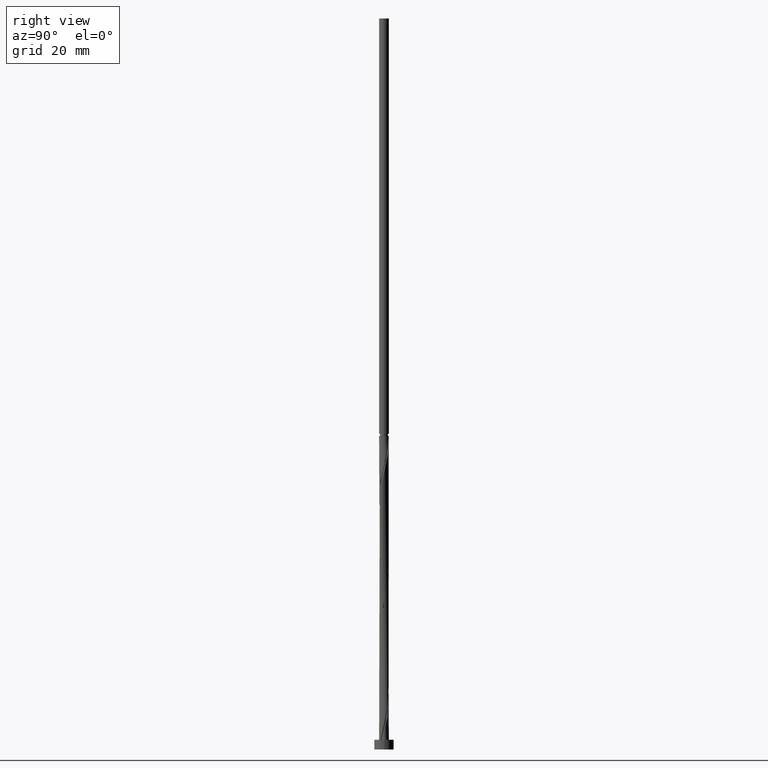
[diagram: clean part render]
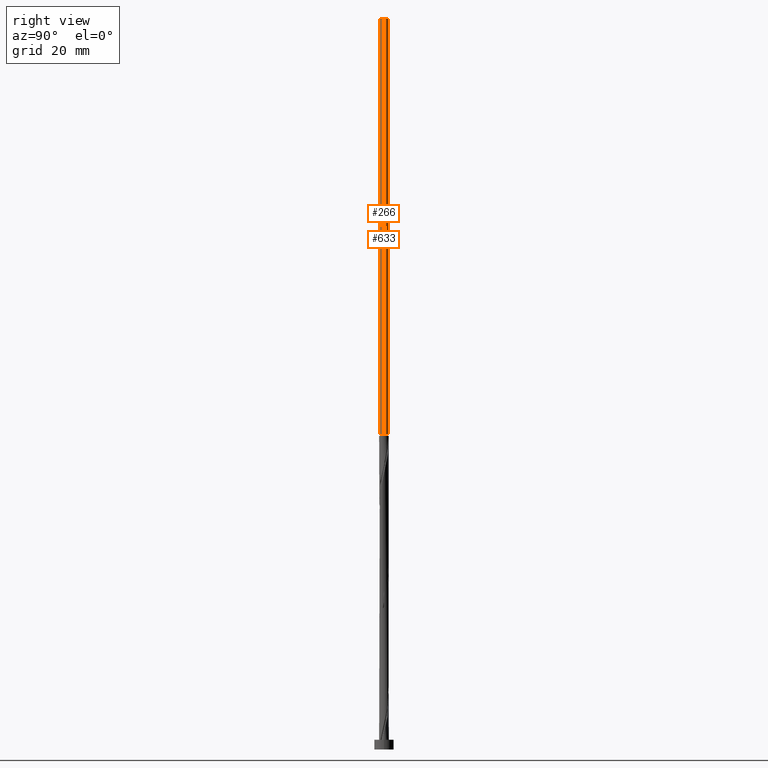
[diagram: same view with one multi-face feature highlighted, each face labeled with its STEP entity id]
A machine part, right view. The highlighted faces form ONE feature: a constant-radius fillet chain: 2 tangent blend faces with common blend radius 1 mm. The faces share edges in the B-rep.
Their STEP definitions:
[1] entity #266 (Cylinder):
#3 = DIRECTION ( 'NONE',  ( -1.000000000000000000, 0.000000000000000000, 0.000000000000000000 ) ) ;
#89 = AXIS2_PLACEMENT_3D ( 'NONE', #789, #282, #3 ) ;
#105 = DIRECTION ( 'NONE',  ( 1.000000000000000000, 0.000000000000000000, 0.000000000000000000 ) ) ;
#124 = CIRCLE ( 'NONE', #1044, 1.000000000000000000 ) ;
#180 = VERTEX_POINT ( 'NONE', #555 ) ;
#206 = EDGE_CURVE ( 'NONE', #1597, #735, #124, .T. ) ;
#266 = ADVANCED_FACE ( 'NONE', ( #1559 ), #396, .T. ) ;
#282 = DIRECTION ( 'NONE',  ( -0.000000000000000000, -0.000000000000000000, -1.000000000000000000 ) ) ;
#297 = CIRCLE ( 'NONE', #89, 1.000000000000004219 ) ;
#396 = CYLINDRICAL_SURFACE ( 'NONE', #1719, 1.000000000000000000 ) ;
#445 = VERTEX_POINT ( 'NONE', #779 ) ;
#555 = CARTESIAN_POINT ( 'NONE',  ( 1.000000000000004219, 1.224646799147358138E-16, 64.75626585807479785 ) ) ;
#596 = EDGE_CURVE ( 'NONE', #180, #445, #297, .T. ) ;
#607 = ORIENTED_EDGE ( 'NONE', *, *, #729, .T. ) ;
#610 = CARTESIAN_POINT ( 'NONE',  ( -1.000000000000000000, 0.000000000000000000, 150.0000000000000000 ) ) ;
#729 = EDGE_CURVE ( 'NONE', #1597, #445, #1298, .T. ) ;
#735 = VERTEX_POINT ( 'NONE', #1397 ) ;
#779 = CARTESIAN_POINT ( 'NONE',  ( -1.000000000000004219, 0.000000000000000000, 64.75626585807479785 ) ) ;
#789 = CARTESIAN_POINT ( 'NONE',  ( 0.000000000000000000, 0.000000000000000000, 64.75626585807479785 ) ) ;
#866 = ORIENTED_EDGE ( 'NONE', *, *, #596, .F. ) ;
#962 = DIRECTION ( 'NONE',  ( -0.000000000000000000, -0.000000000000000000, -1.000000000000000000 ) ) ;
#978 = DIRECTION ( 'NONE',  ( 0.000000000000000000, 0.000000000000000000, 1.000000000000000000 ) ) ;
#985 = CARTESIAN_POINT ( 'NONE',  ( -1.000000000000000000, 0.000000000000000000, 150.0000000000000000 ) ) ;
#1006 = EDGE_CURVE ( 'NONE', #735, #180, #1575, .T. ) ;
#1044 = AXIS2_PLACEMENT_3D ( 'NONE', #1848, #978, #105 ) ;
#1120 = ORIENTED_EDGE ( 'NONE', *, *, #206, .F. ) ;
#1127 = DIRECTION ( 'NONE',  ( -0.000000000000000000, -0.000000000000000000, -1.000000000000000000 ) ) ;
#1140 = DIRECTION ( 'NONE',  ( -0.000000000000000000, -0.000000000000000000, -1.000000000000000000 ) ) ;
#1167 = EDGE_LOOP ( 'NONE', ( #1447, #1120, #607, #866 ) ) ;
#1197 = VECTOR ( 'NONE', #1140, 1000.000000000000000 ) ;
#1298 = LINE ( 'NONE', #985, #1590 ) ;
#1397 = CARTESIAN_POINT ( 'NONE',  ( 1.000000000000000000, 1.224646799147353207E-16, 150.0000000000000000 ) ) ;
#1447 = ORIENTED_EDGE ( 'NONE', *, *, #1006, .F. ) ;
#1541 = DIRECTION ( 'NONE',  ( -1.000000000000000000, 0.000000000000000000, 0.000000000000000000 ) ) ;
#1548 = CARTESIAN_POINT ( 'NONE',  ( 1.000000000000000000, 1.224646799147353207E-16, 150.0000000000000000 ) ) ;
#1559 = FACE_OUTER_BOUND ( 'NONE', #1167, .T. ) ;
#1571 = CARTESIAN_POINT ( 'NONE',  ( 0.000000000000000000, 0.000000000000000000, 150.0000000000000000 ) ) ;
#1575 = LINE ( 'NONE', #1548, #1197 ) ;
#1590 = VECTOR ( 'NONE', #1127, 1000.000000000000000 ) ;
#1597 = VERTEX_POINT ( 'NONE', #610 ) ;
#1719 = AXIS2_PLACEMENT_3D ( 'NONE', #1571, #962, #1541 ) ;
#1848 = CARTESIAN_POINT ( 'NONE',  ( 0.000000000000000000, 0.000000000000000000, 150.0000000000000000 ) ) ;
[2] entity #633 (Cylinder):
#135 = DIRECTION ( 'NONE',  ( 0.000000000000000000, 0.000000000000000000, 1.000000000000000000 ) ) ;
#180 = VERTEX_POINT ( 'NONE', #555 ) ;
#267 = CARTESIAN_POINT ( 'NONE',  ( 0.000000000000000000, 0.000000000000000000, 150.0000000000000000 ) ) ;
#434 = DIRECTION ( 'NONE',  ( -0.000000000000000000, -0.000000000000000000, -1.000000000000000000 ) ) ;
#445 = VERTEX_POINT ( 'NONE', #779 ) ;
#555 = CARTESIAN_POINT ( 'NONE',  ( 1.000000000000004219, 1.224646799147358138E-16, 64.75626585807479785 ) ) ;
#569 = CARTESIAN_POINT ( 'NONE',  ( 0.000000000000000000, 0.000000000000000000, 150.0000000000000000 ) ) ;
#610 = CARTESIAN_POINT ( 'NONE',  ( -1.000000000000000000, 0.000000000000000000, 150.0000000000000000 ) ) ;
#633 = ADVANCED_FACE ( 'NONE', ( #713 ), #1557, .T. ) ;
#636 = ORIENTED_EDGE ( 'NONE', *, *, #1347, .F. ) ;
#680 = EDGE_CURVE ( 'NONE', #735, #1597, #1435, .T. ) ;
#712 = AXIS2_PLACEMENT_3D ( 'NONE', #1151, #730, #749 ) ;
#713 = FACE_OUTER_BOUND ( 'NONE', #899, .T. ) ;
#729 = EDGE_CURVE ( 'NONE', #1597, #445, #1298, .T. ) ;
#730 = DIRECTION ( 'NONE',  ( -0.000000000000000000, -0.000000000000000000, -1.000000000000000000 ) ) ;
#735 = VERTEX_POINT ( 'NONE', #1397 ) ;
#749 = DIRECTION ( 'NONE',  ( -1.000000000000000000, 0.000000000000000000, 0.000000000000000000 ) ) ;
#779 = CARTESIAN_POINT ( 'NONE',  ( -1.000000000000004219, 0.000000000000000000, 64.75626585807479785 ) ) ;
#833 = AXIS2_PLACEMENT_3D ( 'NONE', #267, #135, #1831 ) ;
#899 = EDGE_LOOP ( 'NONE', ( #1521, #1190, #636, #1664 ) ) ;
#985 = CARTESIAN_POINT ( 'NONE',  ( -1.000000000000000000, 0.000000000000000000, 150.0000000000000000 ) ) ;
#1006 = EDGE_CURVE ( 'NONE', #735, #180, #1575, .T. ) ;
#1127 = DIRECTION ( 'NONE',  ( -0.000000000000000000, -0.000000000000000000, -1.000000000000000000 ) ) ;
#1140 = DIRECTION ( 'NONE',  ( -0.000000000000000000, -0.000000000000000000, -1.000000000000000000 ) ) ;
#1151 = CARTESIAN_POINT ( 'NONE',  ( 0.000000000000000000, 0.000000000000000000, 64.75626585807479785 ) ) ;
#1190 = ORIENTED_EDGE ( 'NONE', *, *, #1006, .T. ) ;
#1197 = VECTOR ( 'NONE', #1140, 1000.000000000000000 ) ;
#1270 = DIRECTION ( 'NONE',  ( -1.000000000000000000, 0.000000000000000000, 0.000000000000000000 ) ) ;
#1296 = CIRCLE ( 'NONE', #712, 1.000000000000004219 ) ;
#1298 = LINE ( 'NONE', #985, #1590 ) ;
#1347 = EDGE_CURVE ( 'NONE', #445, #180, #1296, .T. ) ;
#1349 = AXIS2_PLACEMENT_3D ( 'NONE', #569, #434, #1270 ) ;
#1397 = CARTESIAN_POINT ( 'NONE',  ( 1.000000000000000000, 1.224646799147353207E-16, 150.0000000000000000 ) ) ;
#1435 = CIRCLE ( 'NONE', #833, 1.000000000000000000 ) ;
#1521 = ORIENTED_EDGE ( 'NONE', *, *, #680, .F. ) ;
#1548 = CARTESIAN_POINT ( 'NONE',  ( 1.000000000000000000, 1.224646799147353207E-16, 150.0000000000000000 ) ) ;
#1557 = CYLINDRICAL_SURFACE ( 'NONE', #1349, 1.000000000000000000 ) ;
#1575 = LINE ( 'NONE', #1548, #1197 ) ;
#1590 = VECTOR ( 'NONE', #1127, 1000.000000000000000 ) ;
#1597 = VERTEX_POINT ( 'NONE', #610 ) ;
#1664 = ORIENTED_EDGE ( 'NONE', *, *, #729, .F. ) ;
#1831 = DIRECTION ( 'NONE',  ( 1.000000000000000000, 0.000000000000000000, 0.000000000000000000 ) ) ;